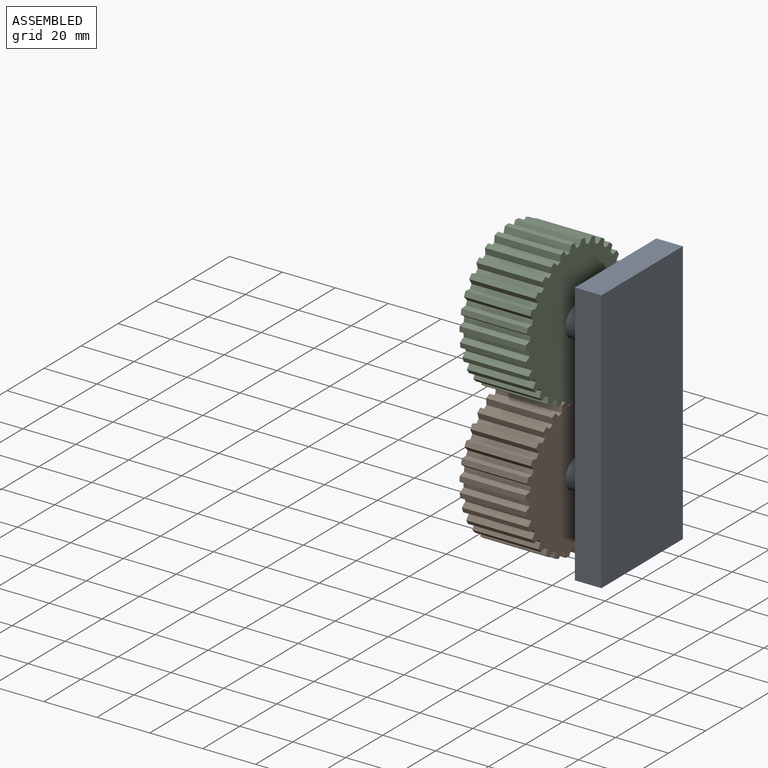
[diagram: assembled view]
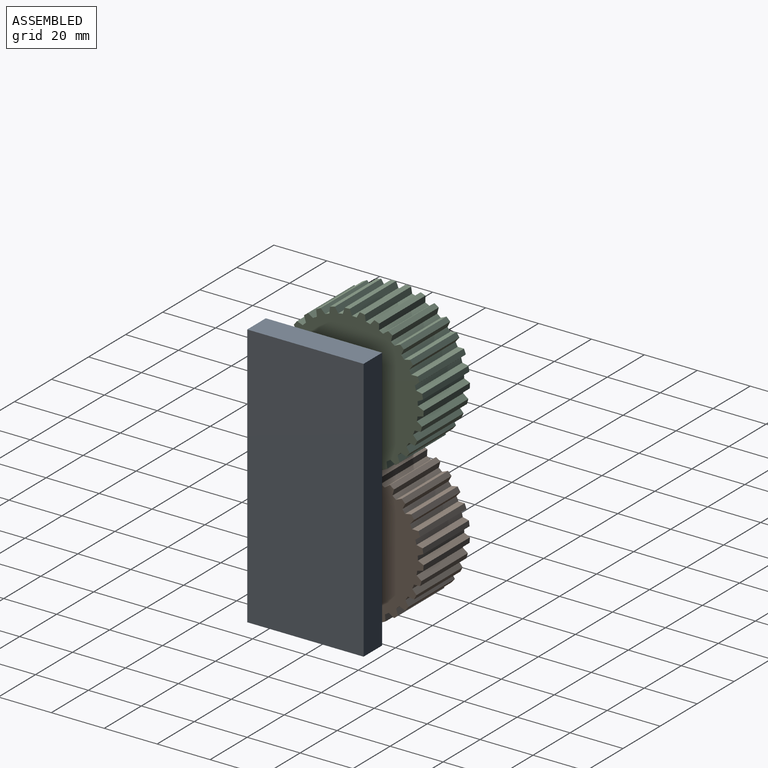
[diagram: assembled view, second angle]
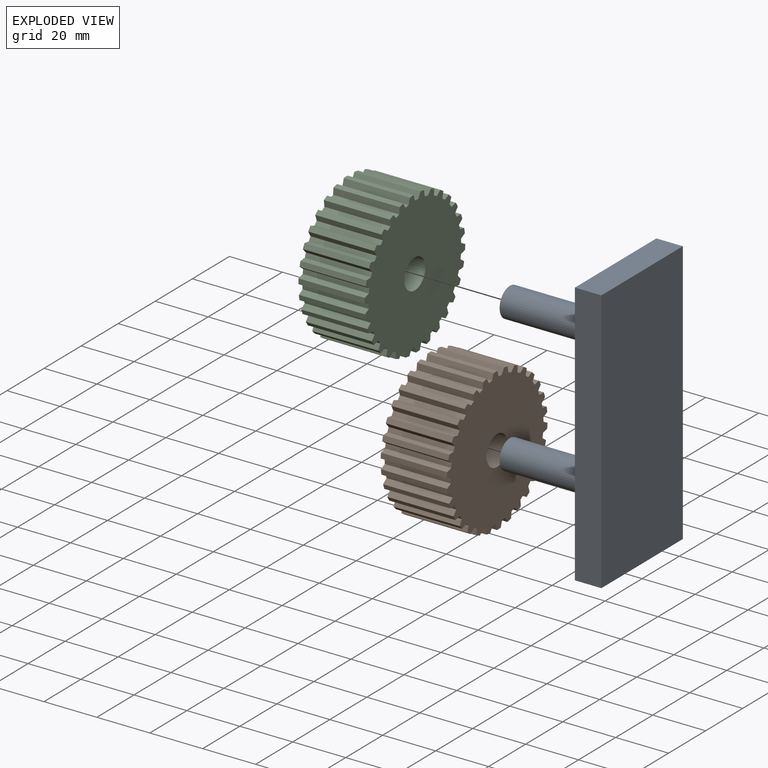
[diagram: exploded view]
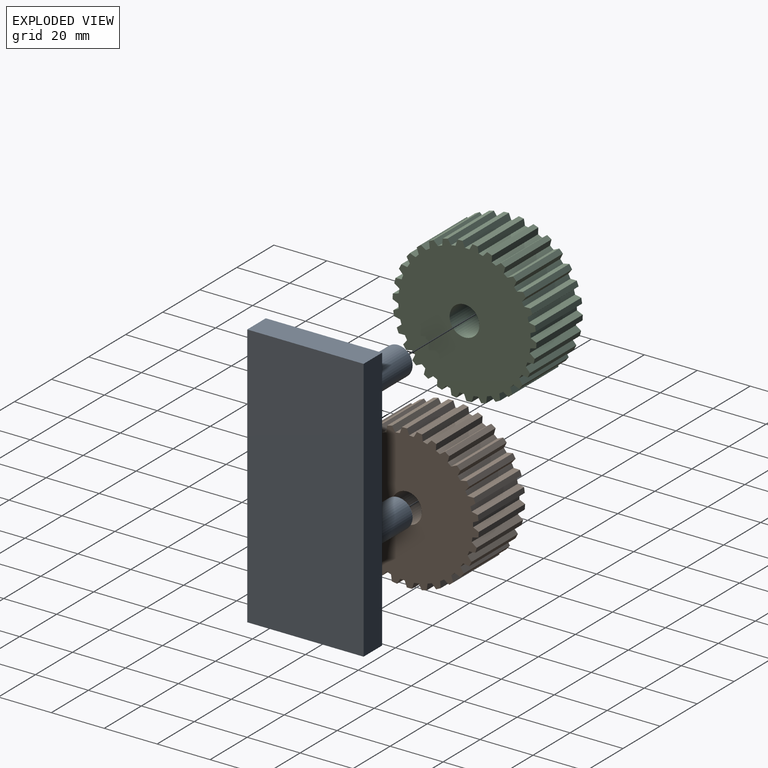
[diagram: exploded view, second angle]
ASSEMBLY  parts=3 mates=2
PART A: 10 faces, bbox 100x50x44 mm
  f0: plane 43.96x10mm, normal (1,0,0), area 439.6mm2, adj f1,f3,f4,f5
  f1: plane 100x10mm, normal (0,0,1), area 1000mm2, adj f0,f2,f4,f5
  f2: plane 43.96x10mm, normal (-1,0,0), area 439.6mm2, adj f1,f3,f4,f5
  f3: plane 100x10mm, normal (0,0,-1), area 1000mm2, adj f0,f2,f4,f5
  f4: plane 100x43.96mm, normal (0,-1,0), area 4205.7mm2, adj f0,f1,f2,f3,f6,f8
  f5: plane 100x43.96mm, normal (0,1,0), area 4395.7mm2, adj f0,f1,f2,f3
  f6: cylinder r=5.5mm len=40mm, axis (0,1,0), area 1382.3mm2, adj f4,f7
  f7: plane 11x11mm, normal (0,-1,0), area 95mm2, adj f6
  f8: cylinder r=5.5mm len=40mm, axis (0,1,0), area 1382.3mm2, adj f4,f9
  f9: plane 11x11mm, normal (0,-1,0), area 95mm2, adj f8
PART B: 123 faces, bbox 54.2x54.3x25 mm
  f0: cylinder r=25mm len=25mm, axis (0,0,-1), area 42.7mm2, adj f1,f119,f120,f121
  f1: plane 25x2.23mm, normal (0.93,0.36,0), area 59.7mm2, adj f0,f2,f120,f121
  f2: plane 25x1.94mm, normal (0,1,0), area 48.4mm2, adj f1,f3,f120,f121
  f3: plane 25x2.22mm, normal (-0.95,0.31,0), area 58.4mm2, adj f2,f4,f120,f121
  f4: cylinder r=25mm len=25mm, axis (0,0,-1), area 42.7mm2, adj f3,f5,f120,f121
  f5: plane 25x2mm, normal (0.84,0.54,0), area 59.7mm2, adj f4,f6,f120,f121
  f6: plane 25x1.9mm, normal (-0.21,0.98,0), area 48.4mm2, adj f5,f7,f120,f121
  f7: plane 25x2.32mm, normal (-0.99,0.11,0), area 58.4mm2, adj f6,f8,f120,f121
  f8: cylinder r=25mm len=25mm, axis (0,0,-1), area 42.7mm2, adj f7,f9,f120,f121
  f9: plane 25x1.69mm, normal (0.71,0.71,0), area 59.7mm2, adj f8,f10,f120,f121
  f10: plane 25x1.77mm, normal (-0.41,0.91,0), area 48.4mm2, adj f9,f11,f120,f121
  f11: plane 25x2.33mm, normal (-0.99,-0.1,0), area 58.4mm2, adj f10,f12,f120,f121
  f12: cylinder r=25mm len=25mm, axis (0,0,-1), area 42.7mm2, adj f11,f13,f120,f121
  f13: plane 25x2mm, normal (0.55,0.84,0), area 59.7mm2, adj f12,f14,f120,f121
  f14: plane 25x1.57mm, normal (-0.59,0.81,0), area 48.4mm2, adj f13,f15,f120,f121
  f15: plane 25x2.23mm, normal (-0.95,-0.3,0), area 58.4mm2, adj f14,f16,f120,f121
  f16: cylinder r=25mm len=25mm, axis (0,0,-1), area 42.7mm2, adj f15,f17,f120,f121
  f17: plane 25x2.23mm, normal (0.36,0.93,0), area 59.7mm2, adj f16,f18,f120,f121
  f18: plane 25x1.44mm, normal (-0.74,0.67,0), area 48.4mm2, adj f17,f19,f120,f121
  f19: plane 25x2.03mm, normal (-0.87,-0.5,0), area 58.4mm2, adj f18,f20,f120,f121
  f20: cylinder r=25mm len=25mm, axis (0,0,-1), area 42.7mm2, adj f19,f21,f120,f121
  f21: plane 25x2.36mm, normal (0.16,0.99,0), area 59.7mm2, adj f20,f22,f120,f121
  f22: plane 25x1.68mm, normal (-0.87,0.5,0), area 48.4mm2, adj f21,f23,f120,f121
  f23: plane 25x1.74mm, normal (-0.75,-0.67,0), area 58.4mm2, adj f22,f24,f120,f121
  f24: cylinder r=25mm len=25mm, axis (0,0,-1), area 42.7mm2, adj f23,f25,f120,f121
  f25: plane 25x2.38mm, normal (-0.05,1,0), area 59.7mm2, adj f24,f26,f120,f121
  f26: plane 25x1.84mm, normal (-0.95,0.31,0), area 48.4mm2, adj f25,f27,f120,f121
  f27: plane 25x1.88mm, normal (-0.59,-0.81,0), area 58.4mm2, adj f26,f28,f120,f121
  f28: cylinder r=25mm len=25mm, axis (0,0,-1), area 42.7mm2, adj f27,f29,f120,f121
  f29: plane 25x2.31mm, normal (-0.26,0.97,0), area 59.7mm2, adj f28,f30,f120,f121
  f30: plane 25x1.93mm, normal (-0.99,0.1,0), area 48.4mm2, adj f29,f31,f120,f121
  f31: plane 25x2.13mm, normal (-0.41,-0.91,0), area 58.4mm2, adj f30,f32,f120,f121
  f32: cylinder r=25mm len=25mm, axis (0,0,-1), area 42.7mm2, adj f31,f33,f120,f121
  f33: plane 25x2.13mm, normal (-0.45,0.89,0), area 59.7mm2, adj f32,f34,f120,f121
  f34: plane 25x1.93mm, normal (-0.99,-0.1,0), area 48.4mm2, adj f33,f35,f120,f121
  f35: plane 25x2.28mm, normal (-0.21,-0.98,0), area 58.4mm2, adj f34,f36,f120,f121
  f36: cylinder r=25mm len=25mm, axis (0,0,-1), area 42.7mm2, adj f35,f37,f120,f121
  f37: plane 25x1.86mm, normal (-0.63,0.78,0), area 59.7mm2, adj f36,f38,f120,f121
  f38: plane 25x1.84mm, normal (-0.95,-0.31,0), area 48.4mm2, adj f37,f39,f120,f121
  f39: plane 25x2.34mm, normal (0,-1,0), area 58.4mm2, adj f38,f40,f120,f121
  f40: cylinder r=25mm len=25mm, axis (0,0,-1), area 42.7mm2, adj f39,f41,f120,f121
  f41: plane 25x1.85mm, normal (-0.78,0.63,0), area 59.7mm2, adj f40,f42,f120,f121
  f42: plane 25x1.68mm, normal (-0.87,-0.5,0), area 48.4mm2, adj f41,f43,f120,f121
  f43: plane 25x2.29mm, normal (0.2,-0.98,0), area 58.4mm2, adj f42,f44,f120,f121
  f44: cylinder r=25mm len=25mm, axis (0,0,-1), area 42.7mm2, adj f43,f45,f120,f121
  f45: plane 25x2.13mm, normal (-0.89,0.45,0), area 59.7mm2, adj f44,f46,f120,f121
  f46: plane 25x1.44mm, normal (-0.74,-0.67,0), area 48.4mm2, adj f45,f47,f120,f121
  f47: plane 25x2.14mm, normal (0.4,-0.92,0), area 58.4mm2, adj f46,f48,f120,f121
  f48: cylinder r=25mm len=25mm, axis (0,0,-1), area 42.7mm2, adj f47,f49,f120,f121
  f49: plane 25x2.31mm, normal (-0.97,0.26,0), area 59.7mm2, adj f48,f50,f120,f121
  f50: plane 25x1.57mm, normal (-0.59,-0.81,0), area 48.4mm2, adj f49,f51,f120,f121
  f51: plane 25x1.9mm, normal (0.58,-0.81,0), area 58.4mm2, adj f50,f52,f120,f121
  f52: cylinder r=25mm len=25mm, axis (0,0,-1), area 42.7mm2, adj f51,f53,f120,f121
  f53: plane 25x2.38mm, normal (-1,0.05,0), area 59.7mm2, adj f52,f54,f120,f121
  f54: plane 25x1.77mm, normal (-0.41,-0.91,0), area 48.4mm2, adj f53,f55,f120,f121
  f55: plane 25x1.73mm, normal (0.74,-0.67,0), area 58.4mm2, adj f54,f56,f120,f121
  f56: cylinder r=25mm len=25mm, axis (0,0,-1), area 42.7mm2, adj f55,f57,f120,f121
  f57: plane 25x2.36mm, normal (-0.99,-0.16,0), area 59.7mm2, adj f56,f58,f120,f121
  f58: plane 25x1.9mm, normal (-0.21,-0.98,0), area 48.4mm2, adj f57,f59,f120,f121
  f59: plane 25x2.02mm, normal (0.86,-0.5,0), area 58.4mm2, adj f58,f60,f120,f121
  f60: cylinder r=25mm len=25mm, axis (0,0,-1), area 42.7mm2, adj f59,f61,f120,f121
  f61: plane 25x2.23mm, normal (-0.93,-0.36,0), area 59.7mm2, adj f60,f62,f120,f121
  f62: plane 25x1.94mm, normal (0,-1,0), area 48.4mm2, adj f61,f63,f120,f121
  f63: plane 25x2.22mm, normal (0.95,-0.31,0), area 58.4mm2, adj f62,f64,f120,f121
  f64: cylinder r=25mm len=25mm, axis (0,0,-1), area 42.7mm2, adj f63,f65,f120,f121
  f65: plane 25x2mm, normal (-0.84,-0.54,0), area 59.7mm2, adj f64,f66,f120,f121
  f66: plane 25x1.9mm, normal (0.21,-0.98,0), area 48.4mm2, adj f65,f67,f120,f121
  f67: plane 25x2.32mm, normal (0.99,-0.11,0), area 58.4mm2, adj f66,f68,f120,f121
  f68: cylinder r=25mm len=25mm, axis (0,0,-1), area 42.7mm2, adj f67,f69,f120,f121
  f69: plane 25x1.69mm, normal (-0.71,-0.71,0), area 59.7mm2, adj f68,f70,f120,f121
  f70: plane 25x1.77mm, normal (0.41,-0.91,0), area 48.4mm2, adj f69,f71,f120,f121
  f71: plane 25x2.33mm, normal (0.99,0.1,0), area 58.4mm2, adj f70,f72,f120,f121
  f72: cylinder r=25mm len=25mm, axis (0,0,-1), area 42.7mm2, adj f71,f73,f120,f121
  f73: plane 25x2mm, normal (-0.55,-0.84,0), area 59.7mm2, adj f72,f74,f120,f121
  f74: plane 25x1.57mm, normal (0.59,-0.81,0), area 48.4mm2, adj f73,f75,f120,f121
  f75: plane 25x2.23mm, normal (0.95,0.3,0), area 58.4mm2, adj f74,f76,f120,f121
  f76: cylinder r=25mm len=25mm, axis (0,0,-1), area 42.7mm2, adj f75,f77,f120,f121
  f77: plane 25x2.23mm, normal (-0.36,-0.93,0), area 59.7mm2, adj f76,f78,f120,f121
  f78: plane 25x1.44mm, normal (0.74,-0.67,0), area 48.4mm2, adj f77,f79,f120,f121
  f79: plane 25x2.03mm, normal (0.87,0.5,0), area 58.4mm2, adj f78,f80,f120,f121
  f80: cylinder r=25mm len=25mm, axis (0,0,-1), area 42.7mm2, adj f79,f81,f120,f121
  f81: plane 25x2.36mm, normal (-0.16,-0.99,0), area 59.7mm2, adj f80,f82,f120,f121
  f82: plane 25x1.68mm, normal (0.87,-0.5,0), area 48.4mm2, adj f81,f83,f120,f121
  f83: plane 25x1.74mm, normal (0.75,0.67,0), area 58.4mm2, adj f82,f84,f120,f121
  f84: cylinder r=25mm len=25mm, axis (0,0,-1), area 42.7mm2, adj f83,f85,f120,f121
  f85: plane 25x2.38mm, normal (0.05,-1,0), area 59.7mm2, adj f84,f86,f120,f121
  f86: plane 25x1.84mm, normal (0.95,-0.31,0), area 48.4mm2, adj f85,f87,f120,f121
  f87: plane 25x1.88mm, normal (0.59,0.81,0), area 58.4mm2, adj f86,f88,f120,f121
  f88: cylinder r=25mm len=25mm, axis (0,0,-1), area 42.7mm2, adj f87,f89,f120,f121
  f89: plane 25x2.31mm, normal (0.26,-0.97,0), area 59.7mm2, adj f88,f90,f120,f121
  f90: plane 25x1.93mm, normal (0.99,-0.1,0), area 48.4mm2, adj f89,f91,f120,f121
  f91: plane 25x2.13mm, normal (0.41,0.91,0), area 58.4mm2, adj f90,f92,f120,f121
  f92: cylinder r=25mm len=25mm, axis (0,0,-1), area 42.7mm2, adj f91,f93,f120,f121
  f93: plane 25x2.13mm, normal (0.45,-0.89,0), area 59.7mm2, adj f92,f94,f120,f121
  f94: plane 25x1.93mm, normal (0.99,0.1,0), area 48.4mm2, adj f93,f95,f120,f121
  f95: plane 25x2.28mm, normal (0.21,0.98,0), area 58.4mm2, adj f94,f96,f120,f121
  f96: cylinder r=25mm len=25mm, axis (0,0,-1), area 42.7mm2, adj f95,f97,f120,f121
  f97: plane 25x1.86mm, normal (0.63,-0.78,0), area 59.7mm2, adj f96,f98,f120,f121
  f98: plane 25x1.84mm, normal (0.95,0.31,0), area 48.4mm2, adj f97,f99,f120,f121
  f99: plane 25x2.34mm, normal (0,1,0), area 58.4mm2, adj f98,f100,f120,f121
  f100: cylinder r=25mm len=25mm, axis (0,0,-1), area 42.7mm2, adj f99,f101,f120,f121
  f101: plane 25x1.85mm, normal (0.78,-0.63,0), area 59.7mm2, adj f100,f102,f120,f121
  f102: plane 25x1.68mm, normal (0.87,0.5,0), area 48.4mm2, adj f101,f103,f120,f121
  f103: plane 25x2.29mm, normal (-0.2,0.98,0), area 58.4mm2, adj f102,f104,f120,f121
  f104: cylinder r=25mm len=25mm, axis (0,0,-1), area 42.7mm2, adj f103,f105,f120,f121
  f105: plane 25x2.13mm, normal (0.89,-0.45,0), area 59.7mm2, adj f104,f106,f120,f121
  f106: plane 25x1.44mm, normal (0.74,0.67,0), area 48.4mm2, adj f105,f107,f120,f121
  f107: plane 25x2.14mm, normal (-0.4,0.92,0), area 58.4mm2, adj f106,f108,f120,f121
  f108: cylinder r=25mm len=25mm, axis (0,0,-1), area 42.7mm2, adj f107,f109,f120,f121
  f109: plane 25x2.31mm, normal (0.97,-0.26,0), area 59.7mm2, adj f108,f110,f120,f121
  f110: plane 25x1.57mm, normal (0.59,0.81,0), area 48.4mm2, adj f109,f111,f120,f121
  f111: plane 25x1.9mm, normal (-0.58,0.81,0), area 58.4mm2, adj f110,f112,f120,f121
  f112: cylinder r=25mm len=25mm, axis (0,0,-1), area 42.7mm2, adj f111,f113,f120,f121
  f113: plane 25x2.38mm, normal (1,-0.05,0), area 59.7mm2, adj f112,f114,f120,f121
  f114: plane 25x1.77mm, normal (0.41,0.91,0), area 48.4mm2, adj f113,f115,f120,f121
  f115: plane 25x1.73mm, normal (-0.74,0.67,0), area 58.4mm2, adj f114,f116,f120,f121
  f116: cylinder r=25mm len=25mm, axis (0,0,-1), area 42.7mm2, adj f115,f117,f120,f121
  f117: plane 25x2.36mm, normal (0.99,0.16,0), area 59.7mm2, adj f116,f118,f120,f121
  f118: plane 25x1.9mm, normal (0.21,0.98,0), area 48.4mm2, adj f117,f119,f120,f121
  f119: plane 25x2.02mm, normal (-0.86,0.5,0), area 58.4mm2, adj f0,f118,f120,f121
  f120: plane 54.32x54.23mm, normal (0,0,1), area 2041.6mm2, adj f0,f1,f2,f3,f4,f5,f6,f7
  f121: plane 54.32x54.23mm, normal (0,0,-1), area 2041.6mm2, adj f0,f1,f2,f3,f4,f5,f6,f7
  f122: cylinder r=5.63mm len=25mm, axis (0,0,-1), area 884.9mm2, adj f120,f121
PART C: same geometry as B
PLACE A rot(axis=(0.58,0.58,-0.58),120deg) t=(0,0,0)mm
PLACE B rot(axis=(0.27,-0.93,-0.27),94.3deg) t=(-25,0,-26)mm
PLACE C rot(axis=(0.7,-0.16,-0.7),161.4deg) t=(-25,0,26)mm
MATE revolute B.f0 <-> A.f8  axis (1,0,0) through (-50,0,-26)mm
MATE revolute C.f0 <-> A.f6  axis (-1,0,0) through (-50,0,26)mm
